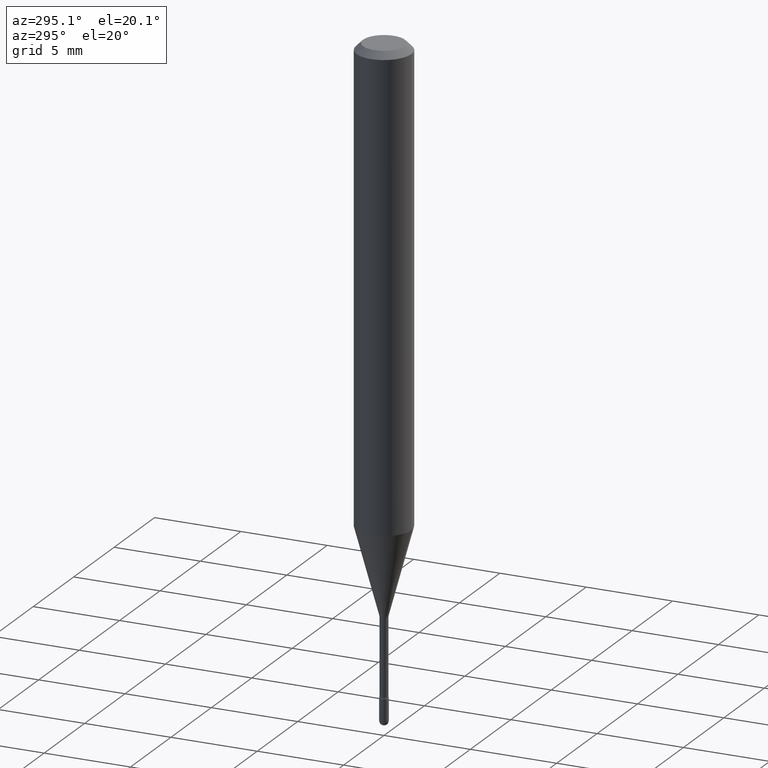
[diagram: clean part render]
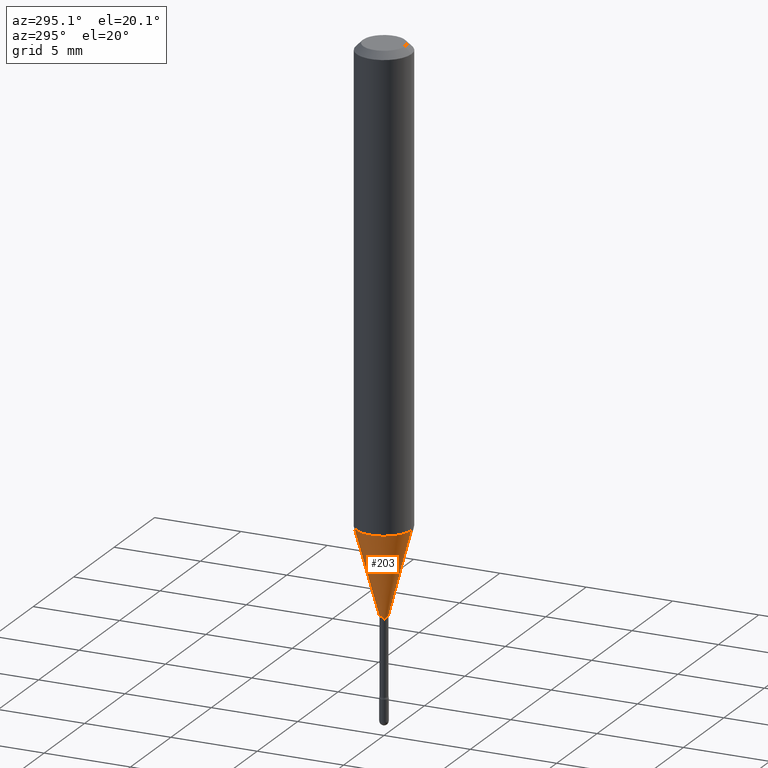
[diagram: same view with one face highlighted and labeled with its STEP entity id]
A machine part, auxiliary view. The second image highlights one B-rep face of the part: STEP entity #203.
In plain terms, the highlighted conical surface has half-angle 15 deg.
Its self-contained STEP definition (entity closure, byte-faithful):
#8 = ORIENTED_EDGE ( 'NONE', *, *, #242, .F. ) ;
#19 = EDGE_CURVE ( 'NONE', #24, #464, #66, .T. ) ;
#24 = VERTEX_POINT ( 'NONE', #29 ) ;
#26 = CARTESIAN_POINT ( 'NONE',  ( -4.364351673553657356E-16, -0.06250000000000371925, -1.061828102118092865 ) ) ;
#29 = CARTESIAN_POINT ( 'NONE',  ( 2.572559502513342919E-16, 0.009911112605659591623, -1.258092501787273276 ) ) ;
#30 = FACE_OUTER_BOUND ( 'NONE', #49, .T. ) ;
#34 = CIRCLE ( 'NONE', #42, 0.009911112605663983943 ) ;
#40 = CARTESIAN_POINT ( 'NONE',  ( 4.440892098500884514E-16, 0.06249999999999629463, -1.061828102118093309 ) ) ;
#42 = AXIS2_PLACEMENT_3D ( 'NONE', #293, #330, #288 ) ;
#47 = CARTESIAN_POINT ( 'NONE',  ( -6.920892941966669973E-17, -0.009911112605668376263, -1.258092501787273276 ) ) ;
#49 = EDGE_LOOP ( 'NONE', ( #260, #65, #213, #8 ) ) ;
#59 = DIRECTION ( 'NONE',  ( -2.445567637123405880E-29, 3.491339807314436332E-15, 1.000000000000000000 ) ) ;
#65 = ORIENTED_EDGE ( 'NONE', *, *, #500, .T. ) ;
#66 = LINE ( 'NONE', #491, #421 ) ;
#76 = CARTESIAN_POINT ( 'NONE',  ( -6.920892941966669973E-17, -0.009911112605668376263, -1.258092501787273276 ) ) ;
#95 = CONICAL_SURFACE ( 'NONE', #369, 0.009911112605663983943, 0.2617993877991496854 ) ;
#197 = CARTESIAN_POINT ( 'NONE',  ( 3.076750306878576560E-29, -4.392428432773716738E-15, -1.258092501787273276 ) ) ;
#203 = ADVANCED_FACE ( 'NONE', ( #30 ), #95, .T. ) ;
#213 = ORIENTED_EDGE ( 'NONE', *, *, #560, .T. ) ;
#220 = DIRECTION ( 'NONE',  ( -6.982962677686264344E-15, -1.000000000000000000, 0.000000000000000000 ) ) ;
#241 = DIRECTION ( 'NONE',  ( -1.807323732225326195E-15, -0.2588190451025176309, 0.9659258262890690894 ) ) ;
#242 = EDGE_CURVE ( 'NONE', #464, #458, #541, .T. ) ;
#260 = ORIENTED_EDGE ( 'NONE', *, *, #19, .F. ) ;
#268 = DIRECTION ( 'NONE',  ( 1.839019923739596371E-15, 0.2588190451025244032, 0.9659258262890673130 ) ) ;
#286 = CARTESIAN_POINT ( 'NONE',  ( 2.596772442728175058E-29, -3.707202721450037054E-15, -1.061828102118093087 ) ) ;
#288 = DIRECTION ( 'NONE',  ( -6.982962677686264344E-15, -1.000000000000000000, 0.000000000000000000 ) ) ;
#293 = CARTESIAN_POINT ( 'NONE',  ( 3.076750306878576560E-29, -4.392428432773716738E-15, -1.258092501787273276 ) ) ;
#330 = DIRECTION ( 'NONE',  ( -2.445567637123405880E-29, 3.491339807314436332E-15, 1.000000000000000000 ) ) ;
#369 = AXIS2_PLACEMENT_3D ( 'NONE', #197, #59, #220 ) ;
#421 = VECTOR ( 'NONE', #268, 39.37007874015748143 ) ;
#423 = VECTOR ( 'NONE', #241, 39.37007874015748854 ) ;
#439 = AXIS2_PLACEMENT_3D ( 'NONE', #286, #518, #562 ) ;
#458 = VERTEX_POINT ( 'NONE', #26 ) ;
#464 = VERTEX_POINT ( 'NONE', #40 ) ;
#466 = LINE ( 'NONE', #76, #423 ) ;
#491 = CARTESIAN_POINT ( 'NONE',  ( 7.042269065257977501E-17, 0.009911112605659591623, -1.258092501787273276 ) ) ;
#500 = EDGE_CURVE ( 'NONE', #24, #526, #34, .T. ) ;
#518 = DIRECTION ( 'NONE',  ( -2.445567637123405880E-29, 3.491339807314436332E-15, 1.000000000000000000 ) ) ;
#526 = VERTEX_POINT ( 'NONE', #47 ) ;
#541 = CIRCLE ( 'NONE', #439, 0.06250000000000000000 ) ;
#560 = EDGE_CURVE ( 'NONE', #526, #458, #466, .T. ) ;
#562 = DIRECTION ( 'NONE',  ( -6.982962677686265922E-15, -1.000000000000000000, 4.370956789862821150E-15 ) ) ;